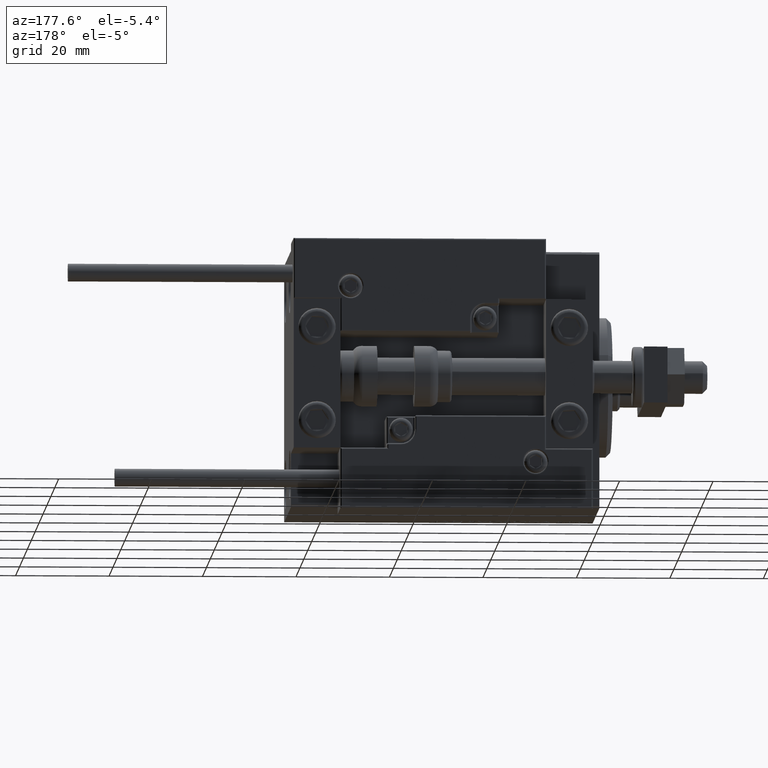
[diagram: clean part render]
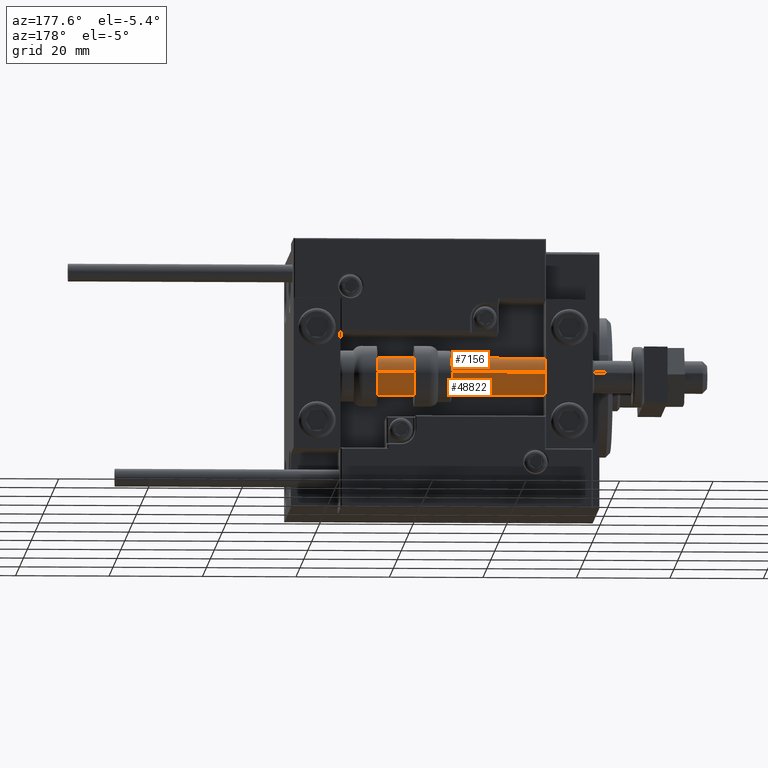
[diagram: same view with one multi-face feature highlighted, each face labeled with its STEP entity id]
A machine part, auxiliary view. The highlighted faces form ONE feature: a constant-radius fillet chain: 2 tangent blend faces with common blend radius 4 mm. The faces share edges in the B-rep.
Their STEP definitions:
[1] entity #7156 (Cylinder):
#228 = CARTESIAN_POINT ( 'NONE',  ( 0.000000000000000000, 0.000000000000000000, 66.00000000000000000 ) ) ;
#282 = CARTESIAN_POINT ( 'NONE',  ( 0.000000000000000000, 0.000000000000000000, 66.00000000000000000 ) ) ;
#2073 = CARTESIAN_POINT ( 'NONE',  ( 0.000000000000000000, 0.000000000000000000, 2.000000000000029310 ) ) ;
#7156 = ADVANCED_FACE ( 'NONE', ( #7576 ), #38790, .T. ) ;
#7576 = FACE_OUTER_BOUND ( 'NONE', #27655, .T. ) ;
#7616 = CARTESIAN_POINT ( 'NONE',  ( -4.000000000000000000, 0.000000000000000000, 66.00000000000000000 ) ) ;
#8485 = CIRCLE ( 'NONE', #12553, 4.000000000000000000 ) ;
#12553 = AXIS2_PLACEMENT_3D ( 'NONE', #282, #28161, #43648 ) ;
#14543 = VERTEX_POINT ( 'NONE', #22033 ) ;
#15783 = VERTEX_POINT ( 'NONE', #45327 ) ;
#15959 = DIRECTION ( 'NONE',  ( -1.000000000000000000, 0.000000000000000000, 0.000000000000000000 ) ) ;
#16300 = VECTOR ( 'NONE', #27940, 1000.000000000000000 ) ;
#16383 = ORIENTED_EDGE ( 'NONE', *, *, #46254, .T. ) ;
#16796 = AXIS2_PLACEMENT_3D ( 'NONE', #228, #34230, #15959 ) ;
#22033 = CARTESIAN_POINT ( 'NONE',  ( 4.000000000000000000, 4.898587196589412829E-16, 2.000000000000029310 ) ) ;
#22120 = VERTEX_POINT ( 'NONE', #44028 ) ;
#25131 = DIRECTION ( 'NONE',  ( -0.000000000000000000, -0.000000000000000000, 1.000000000000000000 ) ) ;
#25405 = CIRCLE ( 'NONE', #45707, 4.000000000000000000 ) ;
#25546 = CARTESIAN_POINT ( 'NONE',  ( -4.000000000000000000, 0.000000000000000000, 66.00000000000000000 ) ) ;
#26370 = ORIENTED_EDGE ( 'NONE', *, *, #30204, .T. ) ;
#27655 = EDGE_LOOP ( 'NONE', ( #33938, #26370, #16383, #47661 ) ) ;
#27940 = DIRECTION ( 'NONE',  ( -0.000000000000000000, -0.000000000000000000, -1.000000000000000000 ) ) ;
#28161 = DIRECTION ( 'NONE',  ( 0.000000000000000000, 0.000000000000000000, 1.000000000000000000 ) ) ;
#29335 = EDGE_CURVE ( 'NONE', #46428, #22120, #32663, .T. ) ;
#30204 = EDGE_CURVE ( 'NONE', #15783, #14543, #42928, .T. ) ;
#32663 = LINE ( 'NONE', #25546, #43815 ) ;
#33938 = ORIENTED_EDGE ( 'NONE', *, *, #48006, .F. ) ;
#34230 = DIRECTION ( 'NONE',  ( -0.000000000000000000, -0.000000000000000000, -1.000000000000000000 ) ) ;
#38790 = CYLINDRICAL_SURFACE ( 'NONE', #16796, 4.000000000000000000 ) ;
#41546 = DIRECTION ( 'NONE',  ( -0.000000000000000000, -0.000000000000000000, -1.000000000000000000 ) ) ;
#42928 = LINE ( 'NONE', #47236, #16300 ) ;
#43648 = DIRECTION ( 'NONE',  ( 1.000000000000000000, 0.000000000000000000, 0.000000000000000000 ) ) ;
#43815 = VECTOR ( 'NONE', #41546, 1000.000000000000000 ) ;
#44028 = CARTESIAN_POINT ( 'NONE',  ( -4.000000000000000000, 0.000000000000000000, 2.000000000000029310 ) ) ;
#44433 = DIRECTION ( 'NONE',  ( 1.000000000000000000, 0.000000000000000000, 0.000000000000000000 ) ) ;
#45327 = CARTESIAN_POINT ( 'NONE',  ( 4.000000000000000000, 4.898587196589412829E-16, 66.00000000000000000 ) ) ;
#45707 = AXIS2_PLACEMENT_3D ( 'NONE', #2073, #25131, #44433 ) ;
#46254 = EDGE_CURVE ( 'NONE', #14543, #22120, #25405, .T. ) ;
#46428 = VERTEX_POINT ( 'NONE', #7616 ) ;
#47236 = CARTESIAN_POINT ( 'NONE',  ( 4.000000000000000000, 4.898587196589412829E-16, 66.00000000000000000 ) ) ;
#47661 = ORIENTED_EDGE ( 'NONE', *, *, #29335, .F. ) ;
#48006 = EDGE_CURVE ( 'NONE', #15783, #46428, #8485, .T. ) ;
[2] entity #48822 (Cylinder):
#1016 = EDGE_LOOP ( 'NONE', ( #11605, #27569, #19287, #26364 ) ) ;
#7616 = CARTESIAN_POINT ( 'NONE',  ( -4.000000000000000000, 0.000000000000000000, 66.00000000000000000 ) ) ;
#11605 = ORIENTED_EDGE ( 'NONE', *, *, #30204, .F. ) ;
#12453 = AXIS2_PLACEMENT_3D ( 'NONE', #42777, #39964, #31856 ) ;
#13071 = AXIS2_PLACEMENT_3D ( 'NONE', #29556, #45046, #21448 ) ;
#14543 = VERTEX_POINT ( 'NONE', #22033 ) ;
#15783 = VERTEX_POINT ( 'NONE', #45327 ) ;
#16300 = VECTOR ( 'NONE', #27940, 1000.000000000000000 ) ;
#16668 = DIRECTION ( 'NONE',  ( -1.000000000000000000, 0.000000000000000000, 0.000000000000000000 ) ) ;
#19287 = ORIENTED_EDGE ( 'NONE', *, *, #29335, .T. ) ;
#21448 = DIRECTION ( 'NONE',  ( 1.000000000000000000, 0.000000000000000000, 0.000000000000000000 ) ) ;
#22033 = CARTESIAN_POINT ( 'NONE',  ( 4.000000000000000000, 4.898587196589412829E-16, 2.000000000000029310 ) ) ;
#22120 = VERTEX_POINT ( 'NONE', #44028 ) ;
#24758 = DIRECTION ( 'NONE',  ( -0.000000000000000000, -0.000000000000000000, -1.000000000000000000 ) ) ;
#25546 = CARTESIAN_POINT ( 'NONE',  ( -4.000000000000000000, 0.000000000000000000, 66.00000000000000000 ) ) ;
#26217 = CIRCLE ( 'NONE', #12453, 4.000000000000000000 ) ;
#26364 = ORIENTED_EDGE ( 'NONE', *, *, #29798, .T. ) ;
#27569 = ORIENTED_EDGE ( 'NONE', *, *, #37338, .F. ) ;
#27940 = DIRECTION ( 'NONE',  ( -0.000000000000000000, -0.000000000000000000, -1.000000000000000000 ) ) ;
#29335 = EDGE_CURVE ( 'NONE', #46428, #22120, #32663, .T. ) ;
#29556 = CARTESIAN_POINT ( 'NONE',  ( 0.000000000000000000, 0.000000000000000000, 2.000000000000029310 ) ) ;
#29798 = EDGE_CURVE ( 'NONE', #22120, #14543, #44633, .T. ) ;
#30204 = EDGE_CURVE ( 'NONE', #15783, #14543, #42928, .T. ) ;
#31856 = DIRECTION ( 'NONE',  ( 1.000000000000000000, 0.000000000000000000, 0.000000000000000000 ) ) ;
#32663 = LINE ( 'NONE', #25546, #43815 ) ;
#36199 = CYLINDRICAL_SURFACE ( 'NONE', #44946, 4.000000000000000000 ) ;
#37338 = EDGE_CURVE ( 'NONE', #46428, #15783, #26217, .T. ) ;
#39964 = DIRECTION ( 'NONE',  ( 0.000000000000000000, 0.000000000000000000, 1.000000000000000000 ) ) ;
#39994 = FACE_OUTER_BOUND ( 'NONE', #1016, .T. ) ;
#41546 = DIRECTION ( 'NONE',  ( -0.000000000000000000, -0.000000000000000000, -1.000000000000000000 ) ) ;
#42777 = CARTESIAN_POINT ( 'NONE',  ( 0.000000000000000000, 0.000000000000000000, 66.00000000000000000 ) ) ;
#42928 = LINE ( 'NONE', #47236, #16300 ) ;
#43561 = CARTESIAN_POINT ( 'NONE',  ( 0.000000000000000000, 0.000000000000000000, 66.00000000000000000 ) ) ;
#43815 = VECTOR ( 'NONE', #41546, 1000.000000000000000 ) ;
#44028 = CARTESIAN_POINT ( 'NONE',  ( -4.000000000000000000, 0.000000000000000000, 2.000000000000029310 ) ) ;
#44633 = CIRCLE ( 'NONE', #13071, 4.000000000000000000 ) ;
#44946 = AXIS2_PLACEMENT_3D ( 'NONE', #43561, #24758, #16668 ) ;
#45046 = DIRECTION ( 'NONE',  ( -0.000000000000000000, -0.000000000000000000, 1.000000000000000000 ) ) ;
#45327 = CARTESIAN_POINT ( 'NONE',  ( 4.000000000000000000, 4.898587196589412829E-16, 66.00000000000000000 ) ) ;
#46428 = VERTEX_POINT ( 'NONE', #7616 ) ;
#47236 = CARTESIAN_POINT ( 'NONE',  ( 4.000000000000000000, 4.898587196589412829E-16, 66.00000000000000000 ) ) ;
#48822 = ADVANCED_FACE ( 'NONE', ( #39994 ), #36199, .T. ) ;